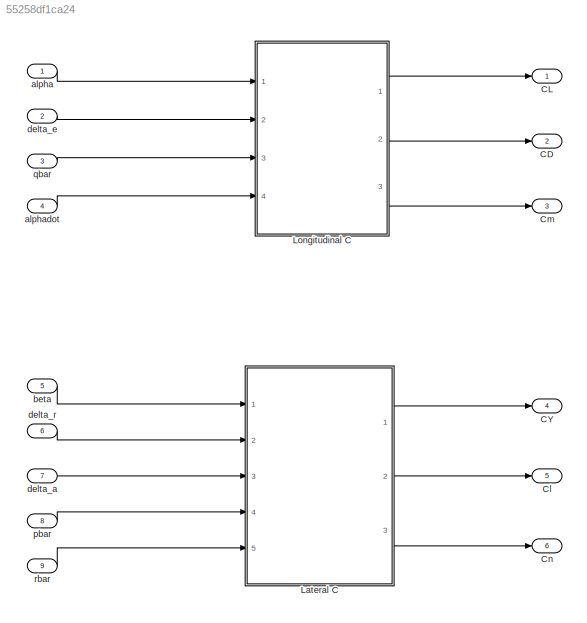
MODEL slx_55258df1ca24
KIND model
CONFIG AbsTol = auto
CONFIG EnableMultiTasking = off
CONFIG FixedStep = auto
CONFIG MaxStep = auto
CONFIG MinStep = auto
CONFIG RelTol = 1e-3
CONFIG SampleTimeConstraint = Unconstrained
CONFIG Solver = VariableStepAuto
CONFIG SolverName = VariableStepAuto
CONFIG StartTime = 0.0
CONFIG StopTime = 10.0
BLOCK [Outport] CD
  IconDisplay = Port number
  Port = 2
BLOCK [Outport] CL
  IconDisplay = Port number
BLOCK [Outport] CY
  IconDisplay = Port number
  Port = 4
BLOCK [Outport] Cl
  IconDisplay = Port number
  Port = 5
BLOCK [Outport] Cm
  IconDisplay = Port number
  Port = 3
BLOCK [Outport] Cn
  IconDisplay = Port number
  Port = 6
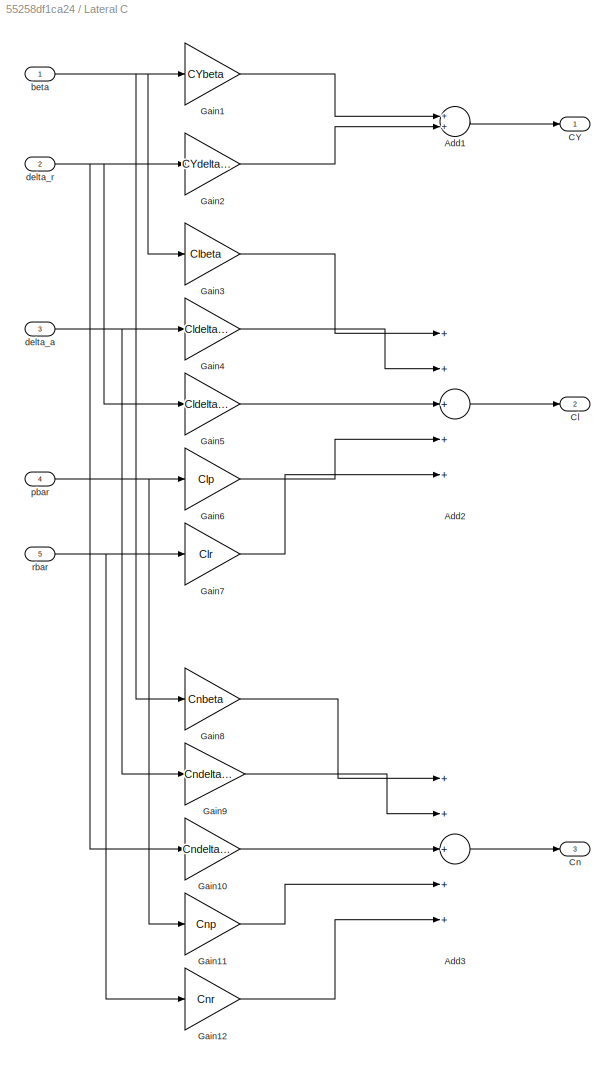
BLOCK [SubSystem] Lateral C
  Ports = [5, 3]
  RequestExecContextInheritance = off
BLOCK [Sum] Lateral C/Add1
  InputSameDT = off
  OutDataTypeStr = Inherit: Inherit via internal rule
  Ports = [2, 1]
  SaturateOnIntegerOverflow = off
BLOCK [Sum] Lateral C/Add2
  InputSameDT = off
  Inputs = +++++
  OutDataTypeStr = Inherit: Inherit via internal rule
  Ports = [5, 1]
  SaturateOnIntegerOverflow = off
BLOCK [Sum] Lateral C/Add3
  InputSameDT = off
  Inputs = +++++
  OutDataTypeStr = Inherit: Inherit via internal rule
  Ports = [5, 1]
  SaturateOnIntegerOverflow = off
BLOCK [Outport] Lateral C/CY
  IconDisplay = Port number
BLOCK [Outport] Lateral C/Cl
  IconDisplay = Port number
  Port = 2
BLOCK [Outport] Lateral C/Cn
  IconDisplay = Port number
  Port = 3
BLOCK [Gain] Lateral C/Gain1
  Gain = CYbeta
  OutDataTypeStr = Inherit: Inherit via internal rule
  ParamDataTypeStr = Inherit: Inherit via internal rule
  SaturateOnIntegerOverflow = off
BLOCK [Gain] Lateral C/Gain10
  Gain = Cndelta_r
  OutDataTypeStr = Inherit: Inherit via internal rule
  ParamDataTypeStr = Inherit: Inherit via internal rule
  SaturateOnIntegerOverflow = off
BLOCK [Gain] Lateral C/Gain11
  Gain = Cnp
  OutDataTypeStr = Inherit: Inherit via internal rule
  ParamDataTypeStr = Inherit: Inherit via internal rule
  SaturateOnIntegerOverflow = off
BLOCK [Gain] Lateral C/Gain12
  Gain = Cnr
  OutDataTypeStr = Inherit: Inherit via internal rule
  ParamDataTypeStr = Inherit: Inherit via internal rule
  SaturateOnIntegerOverflow = off
BLOCK [Gain] Lateral C/Gain2
  Gain = CYdelta_r
  OutDataTypeStr = Inherit: Inherit via internal rule
  ParamDataTypeStr = Inherit: Inherit via internal rule
  SaturateOnIntegerOverflow = off
BLOCK [Gain] Lateral C/Gain3
  Gain = Clbeta
  OutDataTypeStr = Inherit: Inherit via internal rule
  ParamDataTypeStr = Inherit: Inherit via internal rule
  SaturateOnIntegerOverflow = off
BLOCK [Gain] Lateral C/Gain4
  Gain = Cldelta_a
  OutDataTypeStr = Inherit: Inherit via internal rule
  ParamDataTypeStr = Inherit: Inherit via internal rule
  SaturateOnIntegerOverflow = off
BLOCK [Gain] Lateral C/Gain5
  Gain = Cldelta_r
  OutDataTypeStr = Inherit: Inherit via internal rule
  ParamDataTypeStr = Inherit: Inherit via internal rule
  SaturateOnIntegerOverflow = off
BLOCK [Gain] Lateral C/Gain6
  Gain = Clp
  OutDataTypeStr = Inherit: Inherit via internal rule
  ParamDataTypeStr = Inherit: Inherit via internal rule
  SaturateOnIntegerOverflow = off
BLOCK [Gain] Lateral C/Gain7
  Gain = Clr
  OutDataTypeStr = Inherit: Inherit via internal rule
  ParamDataTypeStr = Inherit: Inherit via internal rule
  SaturateOnIntegerOverflow = off
BLOCK [Gain] Lateral C/Gain8
  Gain = Cnbeta
  OutDataTypeStr = Inherit: Inherit via internal rule
  ParamDataTypeStr = Inherit: Inherit via internal rule
  SaturateOnIntegerOverflow = off
BLOCK [Gain] Lateral C/Gain9
  Gain = Cndelta_a
  OutDataTypeStr = Inherit: Inherit via internal rule
  ParamDataTypeStr = Inherit: Inherit via internal rule
  SaturateOnIntegerOverflow = off
BLOCK [Inport] Lateral C/beta
  IconDisplay = Port number
BLOCK [Inport] Lateral C/delta_a
  IconDisplay = Port number
  Port = 3
BLOCK [Inport] Lateral C/delta_r
  IconDisplay = Port number
  Port = 2
BLOCK [Inport] Lateral C/pbar
  IconDisplay = Port number
  Port = 4
BLOCK [Inport] Lateral C/rbar
  IconDisplay = Port number
  Port = 5
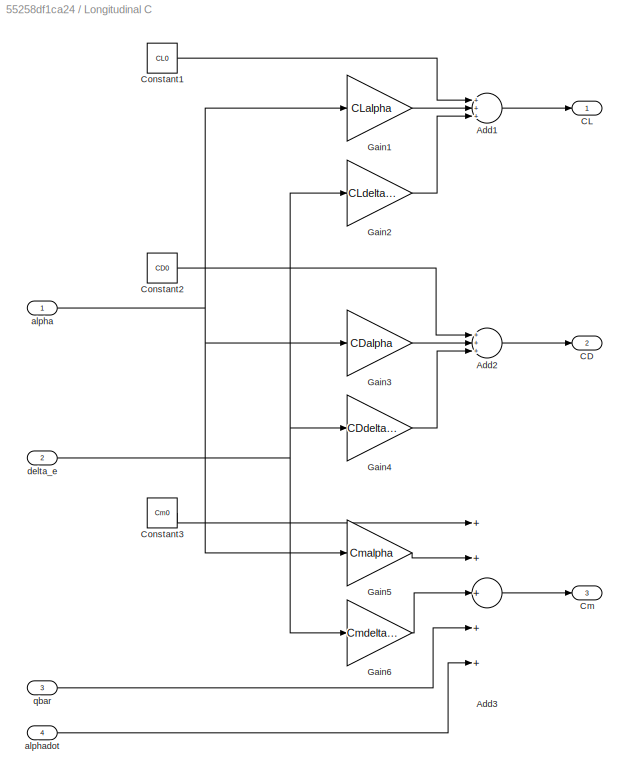
BLOCK [SubSystem] Longitudinal C
  Ports = [4, 3]
  RequestExecContextInheritance = off
BLOCK [Sum] Longitudinal C/Add1
  InputSameDT = off
  Inputs = +++
  OutDataTypeStr = Inherit: Inherit via internal rule
  Ports = [3, 1]
  SaturateOnIntegerOverflow = off
BLOCK [Sum] Longitudinal C/Add2
  InputSameDT = off
  Inputs = +++
  OutDataTypeStr = Inherit: Inherit via internal rule
  Ports = [3, 1]
  SaturateOnIntegerOverflow = off
BLOCK [Sum] Longitudinal C/Add3
  InputSameDT = off
  Inputs = +++++
  OutDataTypeStr = Inherit: Inherit via internal rule
  Ports = [5, 1]
  SaturateOnIntegerOverflow = off
BLOCK [Outport] Longitudinal C/CD
  IconDisplay = Port number
  Port = 2
BLOCK [Outport] Longitudinal C/CL
  IconDisplay = Port number
BLOCK [Outport] Longitudinal C/Cm
  IconDisplay = Port number
  Port = 3
BLOCK [Constant] Longitudinal C/Constant1
  Value = CL0
BLOCK [Constant] Longitudinal C/Constant2
  Value = CD0
BLOCK [Constant] Longitudinal C/Constant3
  Value = Cm0
BLOCK [Gain] Longitudinal C/Gain1
  Gain = CLalpha
  OutDataTypeStr = Inherit: Inherit via internal rule
  ParamDataTypeStr = Inherit: Inherit via internal rule
  SaturateOnIntegerOverflow = off
BLOCK [Gain] Longitudinal C/Gain2
  Gain = CLdelta_e
  OutDataTypeStr = Inherit: Inherit via internal rule
  ParamDataTypeStr = Inherit: Inherit via internal rule
  SaturateOnIntegerOverflow = off
BLOCK [Gain] Longitudinal C/Gain3
  Gain = CDalpha
  OutDataTypeStr = Inherit: Inherit via internal rule
  ParamDataTypeStr = Inherit: Inherit via internal rule
  SaturateOnIntegerOverflow = off
BLOCK [Gain] Longitudinal C/Gain4
  Gain = CDdelta_e
  OutDataTypeStr = Inherit: Inherit via internal rule
  ParamDataTypeStr = Inherit: Inherit via internal rule
  SaturateOnIntegerOverflow = off
BLOCK [Gain] Longitudinal C/Gain5
  Gain = Cmalpha
  OutDataTypeStr = Inherit: Inherit via internal rule
  ParamDataTypeStr = Inherit: Inherit via internal rule
  SaturateOnIntegerOverflow = off
BLOCK [Gain] Longitudinal C/Gain6
  Gain = Cmdelta_e
  OutDataTypeStr = Inherit: Inherit via internal rule
  ParamDataTypeStr = Inherit: Inherit via internal rule
  SaturateOnIntegerOverflow = off
BLOCK [Inport] Longitudinal C/alpha
  IconDisplay = Port number
BLOCK [Inport] Longitudinal C/alphadot
  IconDisplay = Port number
  Port = 4
BLOCK [Inport] Longitudinal C/delta_e
  IconDisplay = Port number
  Port = 2
BLOCK [Inport] Longitudinal C/qbar
  IconDisplay = Port number
  Port = 3
BLOCK [Inport] alpha
  IconDisplay = Port number
BLOCK [Inport] alphadot
  IconDisplay = Port number
  Port = 4
BLOCK [Inport] beta
  IconDisplay = Port number
  Port = 5
BLOCK [Inport] delta_a
  IconDisplay = Port number
  Port = 7
BLOCK [Inport] delta_e
  IconDisplay = Port number
  Port = 2
BLOCK [Inport] delta_r
  IconDisplay = Port number
  Port = 6
BLOCK [Inport] pbar
  IconDisplay = Port number
  Port = 8
BLOCK [Inport] qbar
  IconDisplay = Port number
  Port = 3
BLOCK [Inport] rbar
  IconDisplay = Port number
  Port = 9
LINE Lateral C/Add1:1 -> Lateral C/CY:1
LINE Lateral C/Add2:1 -> Lateral C/Cl:1
LINE Lateral C/Add3:1 -> Lateral C/Cn:1
LINE Lateral C/Gain10:1 -> Lateral C/Add3:3
LINE Lateral C/Gain11:1 -> Lateral C/Add3:4
LINE Lateral C/Gain12:1 -> Lateral C/Add3:5
LINE Lateral C/Gain1:1 -> Lateral C/Add1:1
LINE Lateral C/Gain2:1 -> Lateral C/Add1:2
LINE Lateral C/Gain3:1 -> Lateral C/Add2:1
LINE Lateral C/Gain4:1 -> Lateral C/Add2:2
LINE Lateral C/Gain5:1 -> Lateral C/Add2:3
LINE Lateral C/Gain6:1 -> Lateral C/Add2:4
LINE Lateral C/Gain7:1 -> Lateral C/Add2:5
LINE Lateral C/Gain8:1 -> Lateral C/Add3:1
LINE Lateral C/Gain9:1 -> Lateral C/Add3:2
NET Lateral C/beta:1 -> Lateral C/Gain1:1, Lateral C/Gain3:1, Lateral C/Gain8:1
NET Lateral C/delta_a:1 -> Lateral C/Gain4:1, Lateral C/Gain9:1
NET Lateral C/delta_r:1 -> Lateral C/Gain10:1, Lateral C/Gain2:1, Lateral C/Gain5:1
NET Lateral C/pbar:1 -> Lateral C/Gain11:1, Lateral C/Gain6:1
NET Lateral C/rbar:1 -> Lateral C/Gain12:1, Lateral C/Gain7:1
LINE Lateral C:1 -> CY:1
LINE Lateral C:2 -> Cl:1
LINE Lateral C:3 -> Cn:1
LINE Longitudinal C/Add1:1 -> Longitudinal C/CL:1
LINE Longitudinal C/Add2:1 -> Longitudinal C/CD:1
LINE Longitudinal C/Add3:1 -> Longitudinal C/Cm:1
LINE Longitudinal C/Constant1:1 -> Longitudinal C/Add1:1
LINE Longitudinal C/Constant2:1 -> Longitudinal C/Add2:1
LINE Longitudinal C/Constant3:1 -> Longitudinal C/Add3:1
LINE Longitudinal C/Gain1:1 -> Longitudinal C/Add1:2
LINE Longitudinal C/Gain2:1 -> Longitudinal C/Add1:3
LINE Longitudinal C/Gain3:1 -> Longitudinal C/Add2:2
LINE Longitudinal C/Gain4:1 -> Longitudinal C/Add2:3
LINE Longitudinal C/Gain5:1 -> Longitudinal C/Add3:2
LINE Longitudinal C/Gain6:1 -> Longitudinal C/Add3:3
NET Longitudinal C/alpha:1 -> Longitudinal C/Gain1:1, Longitudinal C/Gain3:1, Longitudinal C/Gain5:1
LINE Longitudinal C/alphadot:1 -> Longitudinal C/Add3:5
NET Longitudinal C/delta_e:1 -> Longitudinal C/Gain2:1, Longitudinal C/Gain4:1, Longitudinal C/Gain6:1
LINE Longitudinal C/qbar:1 -> Longitudinal C/Add3:4
LINE Longitudinal C:1 -> CL:1
LINE Longitudinal C:2 -> CD:1
LINE Longitudinal C:3 -> Cm:1
LINE alpha:1 -> Longitudinal C:1
LINE alphadot:1 -> Longitudinal C:4
LINE beta:1 -> Lateral C:1
LINE delta_a:1 -> Lateral C:3
LINE delta_e:1 -> Longitudinal C:2
LINE delta_r:1 -> Lateral C:2
LINE pbar:1 -> Lateral C:4
LINE qbar:1 -> Longitudinal C:3
LINE rbar:1 -> Lateral C:5
note: NET lines group one-source signal fan-out (src -> all destinations, sorted); 1:1 wires keep LINE
